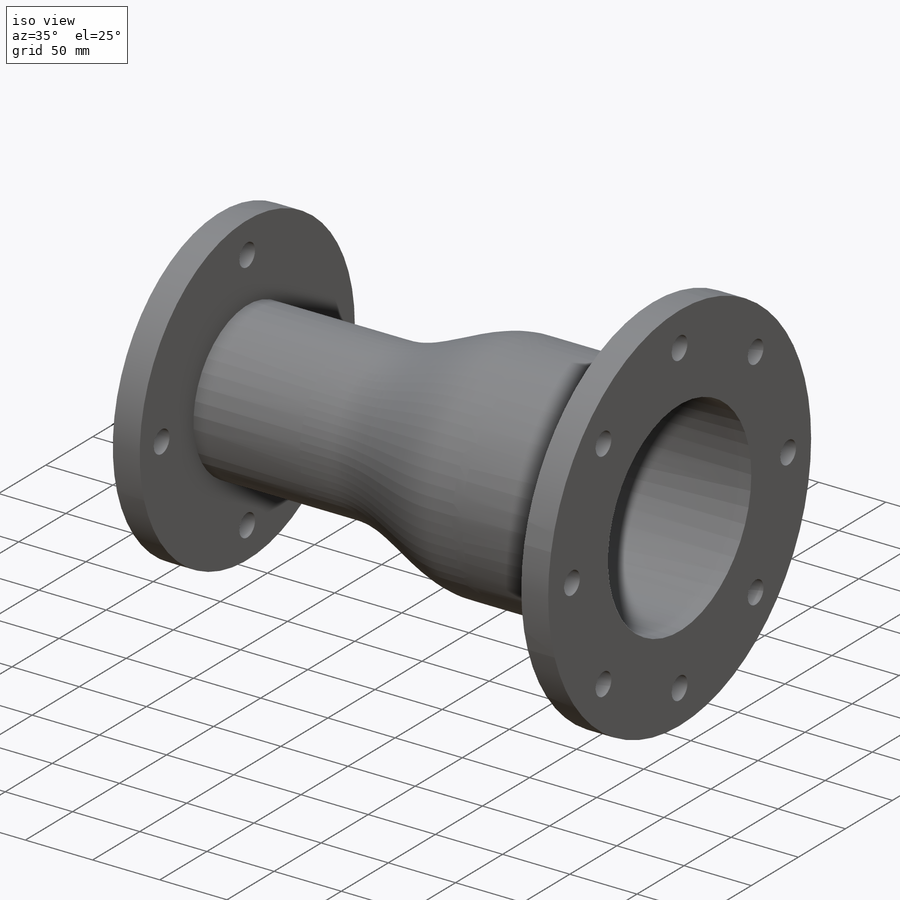
[diagram: iso view]
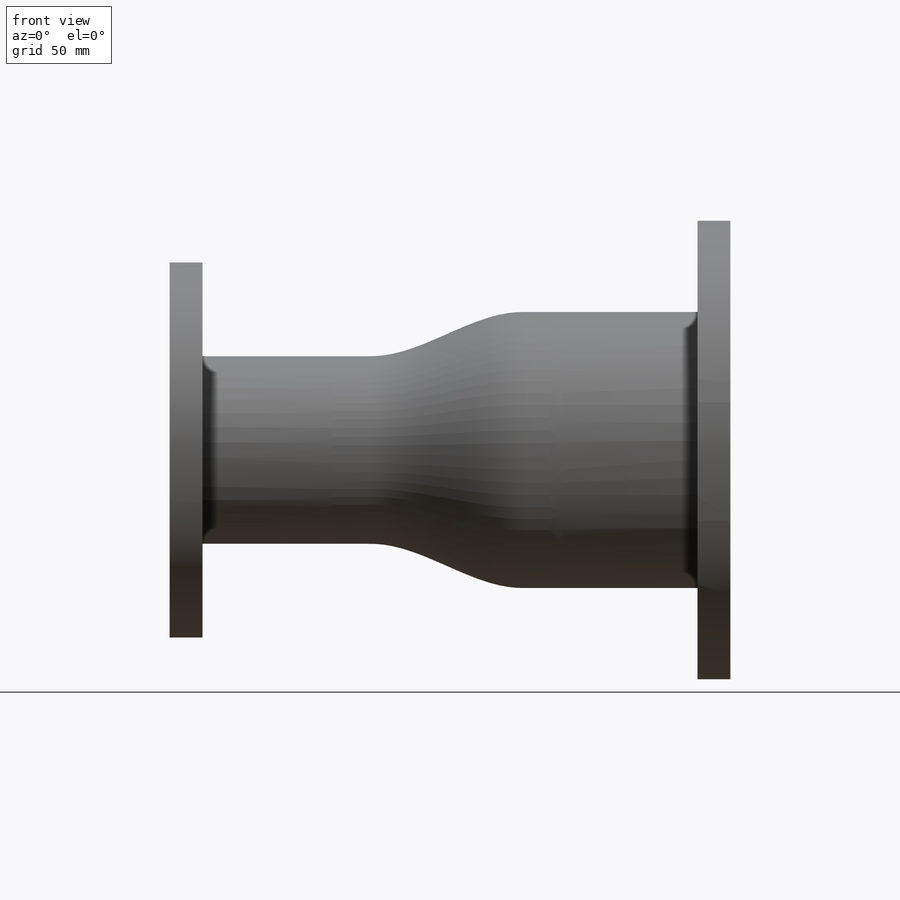
[diagram: front view]
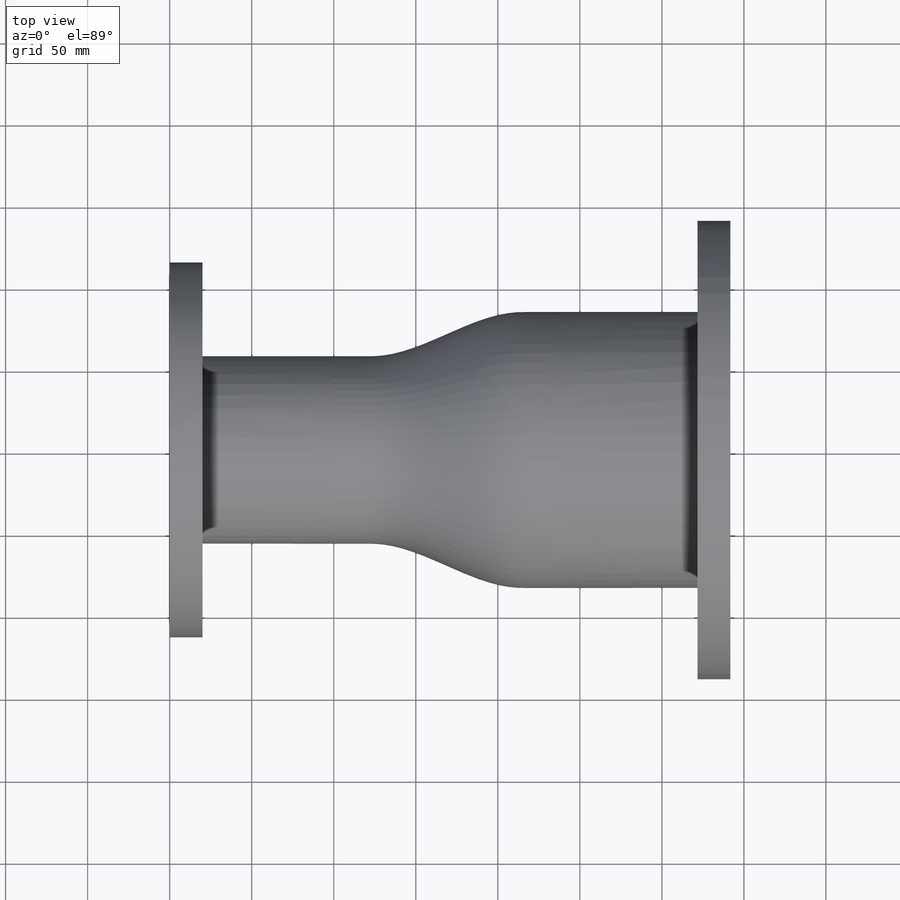
[diagram: top view]
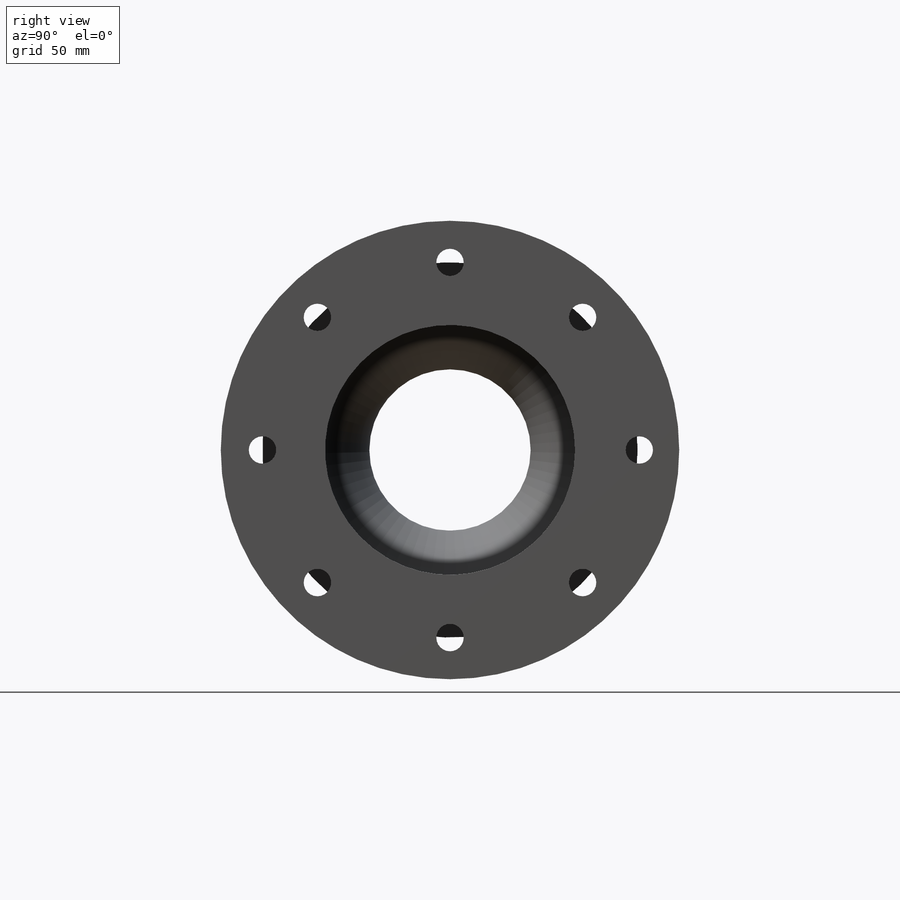
[diagram: right view]
SOLIDWORKS PART (.sldprt)
format: sldprt  version: not decoded by parser v0  size: 411,136 bytes
history: native  units: mm
features: sketch x10, hole x3, cut_extrude x2, material x1, revolve x1, pattern_circular x1 (+17 scaffold rows collapsed)
feature tree (35):
  scaffold x17  (default folders/planes/origin — collapsed)
  material  "Cast Alloy Steel"
  sketch  "Sketch2"  dims[D1=20.0mm D2=8.0mm]
  revolve  "Revolve1"  Angle=360deg
  sketch  "Sketch3"  dims[D1=22.35mm D2=241.3mm]
  cut_extrude  "Cut-Extrude1"  [1 undecoded]
  sketch  "Sketch4"  dims[D1=190.5mm D2=19.0mm D3=~55.143995mm]
  cut_extrude  "Cut-Extrude2"  [1 undecoded]
  pattern_circular  "CirPattern1"  Count=4 Angle=360deg
  sketch  "Sketch5"  dims[D1=171.0mm]
  hole  "5/8 Clearance Hole1"  Diameter=16.66748mm Depth=20mm
  sketch  "Sketch6"
  sketch  "Sketch7"  dims[Thru Hole Dia.=~16.66748mm Thru Hole Depth=20.0mm]
  hole  "CSK for 5/8 Flat Head Machine Screw (100)1"  Diameter=16.66748mm Depth=20mm
  sketch  "Sketch10"  dims[c1.D1=~125.430627mm c2.D1=45.0deg c2.D2=~299.629143mm c3.D2=45.0deg]
  sketch  "Sketch11"  dims[Thru Hole Dia.=~16.66748mm Thru Hole Depth=20.0mm Near C'Sink Dia.=32.3088mm Near C'Sink Angle=100.0deg]
  hole  "CSK for 5/8 Flat Head Machine Screw (100)2"  Diameter=16.66748mm Depth=20mm
  sketch  "Sketch12"
  sketch  "Sketch13"  dims[Thru Hole Dia.=~16.66748mm Thru Hole Depth=20.0mm Near C'Sink Dia.=32.3088mm Near C'Sink Angle=100.0deg]
decode coverage: 13 of 17 modeling features carry decoded parameters
note: ~ marks probable driven/reference dimensions
note: 2 parameter values undecoded
note: suppression state not decoded; provenance and decode notes live in map.json
